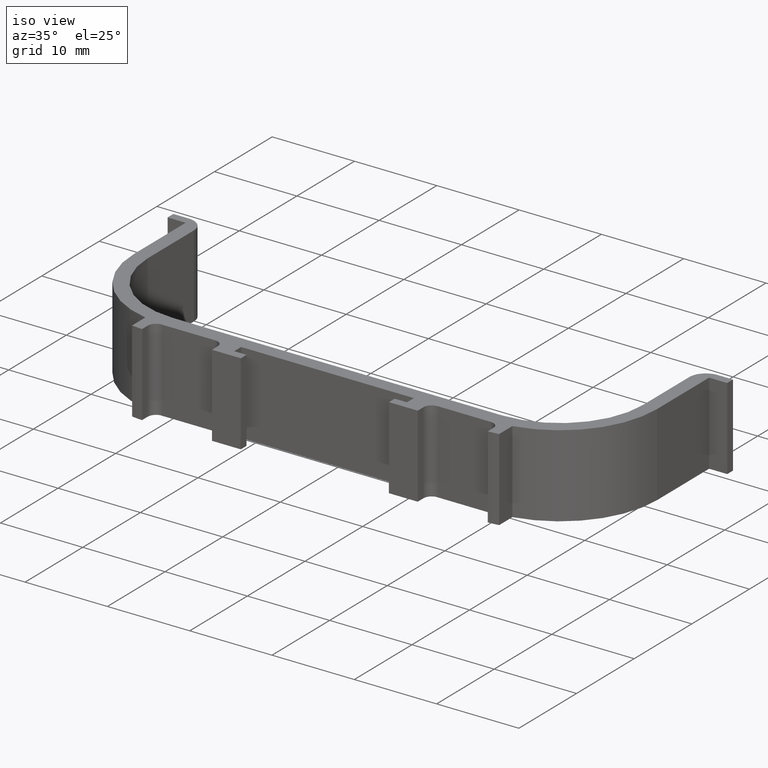
[diagram: clean part render]
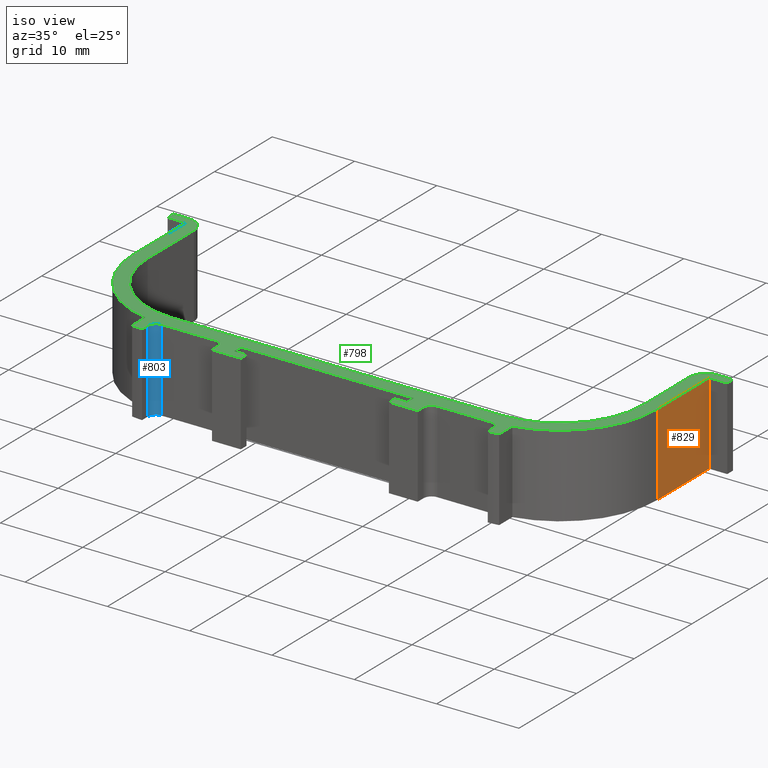
[diagram: same view with three faces highlighted in distinct colors, each labeled with its STEP entity id]
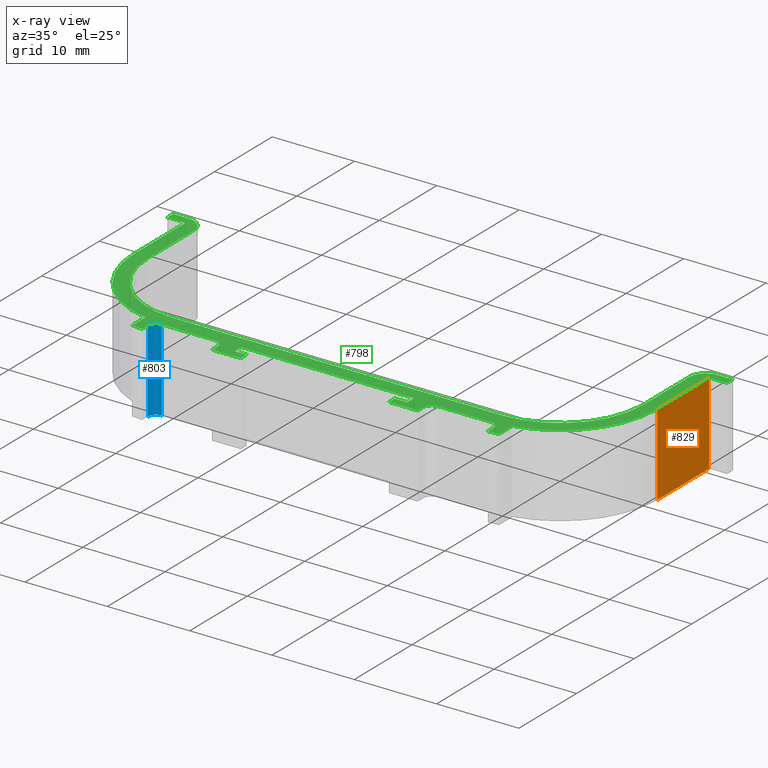
[diagram: x-ray of the same camera — body ghosted, the three highlighted faces saturated]
A machine part, iso view with three faces highlighted in distinct colors.
The next image is the same camera in x-ray (body ghosted, the three faces saturated) — at least one of them is partly hidden behind the body in this view.
Their STEP definitions:

[orange] entity #829 — the highlighted planar face has unit normal (1, 0, 0).
#37=PLANE('',#897);
#77=FACE_OUTER_BOUND('',#119,.T.);
#119=EDGE_LOOP('',(#745,#746,#747,#748));
#152=LINE('',#1207,#248);
#169=LINE('',#1253,#265);
#216=LINE('',#1361,#312);
#217=LINE('',#1363,#313);
#248=VECTOR('',#956,9.);
#265=VECTOR('',#993,9.);
#312=VECTOR('',#1108,10.);
#313=VECTOR('',#1111,10.);
#377=VERTEX_POINT('',#1204);
#378=VERTEX_POINT('',#1206);
#396=VERTEX_POINT('',#1250);
#397=VERTEX_POINT('',#1252);
#458=EDGE_CURVE('',#378,#377,#152,.T.);
#481=EDGE_CURVE('',#397,#396,#169,.T.);
#536=EDGE_CURVE('',#396,#378,#216,.T.);
#537=EDGE_CURVE('',#397,#377,#217,.T.);
#745=ORIENTED_EDGE('',*,*,#458,.T.);
#746=ORIENTED_EDGE('',*,*,#537,.F.);
#747=ORIENTED_EDGE('',*,*,#481,.T.);
#748=ORIENTED_EDGE('',*,*,#536,.T.);
#829=ADVANCED_FACE('',(#77),#37,.T.);
#897=AXIS2_PLACEMENT_3D('',#1362,#1109,#1110);
#956=DIRECTION('',(0.,-1.,0.));
#993=DIRECTION('',(-7.16272919113005E-16,1.,0.));
#1108=DIRECTION('',(0.,0.,1.));
#1109=DIRECTION('center_axis',(1.,0.,0.));
#1110=DIRECTION('ref_axis',(0.,0.,-1.));
#1111=DIRECTION('',(0.,0.,1.));
#1204=CARTESIAN_POINT('',(31.8,10.,5.));
#1206=CARTESIAN_POINT('',(31.8,19.,5.));
#1207=CARTESIAN_POINT('',(31.8,10.,5.));
#1250=CARTESIAN_POINT('',(31.8,19.,-5.));
#1252=CARTESIAN_POINT('',(31.8,10.,-5.));
#1253=CARTESIAN_POINT('',(31.8,12.8,-5.));
#1361=CARTESIAN_POINT('',(31.8,19.,0.));
#1362=CARTESIAN_POINT('Origin',(31.8,12.8,0.));
#1363=CARTESIAN_POINT('',(31.8,10.,0.));

[blue] entity #803 — the highlighted cylindrical surface (edge-blend (fillet) strip) has radius 1 mm, axis along (0, 0, -1).
#51=FACE_OUTER_BOUND('',#93,.T.);
#93=EDGE_LOOP('',(#641,#642,#643,#644));
#190=LINE('',#1310,#286);
#191=LINE('',#1311,#287);
#286=VECTOR('',#1032,10.);
#287=VECTOR('',#1033,10.);
#325=CIRCLE('',#847,1.);
#342=CIRCLE('',#868,1.);
#356=VERTEX_POINT('',#1162);
#357=VERTEX_POINT('',#1164);
#417=VERTEX_POINT('',#1292);
#418=VERTEX_POINT('',#1294);
#437=EDGE_CURVE('',#356,#357,#325,.T.);
#502=EDGE_CURVE('',#417,#418,#342,.T.);
#510=EDGE_CURVE('',#357,#417,#190,.T.);
#511=EDGE_CURVE('',#418,#356,#191,.T.);
#641=ORIENTED_EDGE('',*,*,#502,.F.);
#642=ORIENTED_EDGE('',*,*,#510,.F.);
#643=ORIENTED_EDGE('',*,*,#437,.F.);
#644=ORIENTED_EDGE('',*,*,#511,.F.);
#787=CYLINDRICAL_SURFACE('',#871,1.);
#803=ADVANCED_FACE('',(#51),#787,.F.);
#847=AXIS2_PLACEMENT_3D('',#1165,#929,#930);
#868=AXIS2_PLACEMENT_3D('',#1295,#1019,#1020);
#871=AXIS2_PLACEMENT_3D('',#1309,#1030,#1031);
#929=DIRECTION('center_axis',(0.,0.,-1.));
#930=DIRECTION('ref_axis',(-0.707106781186549,0.707106781186546,0.));
#1019=DIRECTION('center_axis',(0.,0.,1.));
#1020=DIRECTION('ref_axis',(-0.707106781186549,0.707106781186546,0.));
#1030=DIRECTION('center_axis',(0.,0.,-1.));
#1031=DIRECTION('ref_axis',(-0.707106781186549,0.707106781186546,0.));
#1032=DIRECTION('',(0.,0.,-1.));
#1033=DIRECTION('',(0.,0.,1.));
#1162=CARTESIAN_POINT('',(-21.,-3.,5.));
#1164=CARTESIAN_POINT('',(-20.,-2.,5.));
#1165=CARTESIAN_POINT('Origin',(-20.,-3.,5.));
#1292=CARTESIAN_POINT('',(-20.,-2.,-5.));
#1294=CARTESIAN_POINT('',(-21.,-3.,-5.));
#1295=CARTESIAN_POINT('Origin',(-20.,-3.,-5.));
#1309=CARTESIAN_POINT('Origin',(-20.,-3.,0.));
#1310=CARTESIAN_POINT('',(-20.,-2.,0.));
#1311=CARTESIAN_POINT('',(-21.,-3.,0.));

[green] entity #798 — the highlighted planar face has unit normal (0, 0, 1).
#15=PLANE('',#844);
#46=FACE_OUTER_BOUND('',#88,.T.);
#88=EDGE_LOOP('',(#549,#550,#551,#552,#553,#554,#555,#556,#557,#558,#559,
#560,#561,#562,#563,#564,#565,#566,#567,#568,#569,#570,#571,#572,#573,#574,
#575,#576,#577,#578,#579,#580,#581,#582,#583,#584,#585,#586,#587,#588));
#131=LINE('',#1149,#227);
#132=LINE('',#1151,#228);
#133=LINE('',#1153,#229);
#134=LINE('',#1155,#230);
#135=LINE('',#1159,#231);
#136=LINE('',#1163,#232);
#137=LINE('',#1167,#233);
#138=LINE('',#1171,#234);
#139=LINE('',#1173,#235);
#140=LINE('',#1175,#236);
#141=LINE('',#1177,#237);
#142=LINE('',#1179,#238);
#143=LINE('',#1181,#239);
#144=LINE('',#1183,#240);
#145=LINE('',#1185,#241);
#146=LINE('',#1187,#242);
#147=LINE('',#1189,#243);
#148=LINE('',#1191,#244);
#149=LINE('',#1195,#245);
#150=LINE('',#1199,#246);
#151=LINE('',#1203,#247);
#152=LINE('',#1207,#248);
#153=LINE('',#1209,#249);
#154=LINE('',#1211,#250);
#155=LINE('',#1213,#251);
#156=LINE('',#1217,#252);
#157=LINE('',#1221,#253);
#158=LINE('',#1224,#254);
#227=VECTOR('',#919,1.9);
#228=VECTOR('',#920,0.999999999999999);
#229=VECTOR('',#921,2.2);
#230=VECTOR('',#922,9.);
#231=VECTOR('',#925,2.29055492974429);
#232=VECTOR('',#928,0.9895788082818);
#233=VECTOR('',#931,6.5);
#234=VECTOR('',#934,1.);
#235=VECTOR('',#935,3.5);
#236=VECTOR('',#936,1.);
#237=VECTOR('',#937,1.5);
#238=VECTOR('',#938,1.2);
#239=VECTOR('',#939,21.);
#240=VECTOR('',#940,1.2);
#241=VECTOR('',#941,1.5);
#242=VECTOR('',#942,1.);
#243=VECTOR('',#943,3.5);
#244=VECTOR('',#944,1.);
#245=VECTOR('',#947,6.5);
#246=VECTOR('',#950,0.9895788082818);
#247=VECTOR('',#953,2.29055492974429);
#248=VECTOR('',#956,9.);
#249=VECTOR('',#957,2.2);
#250=VECTOR('',#958,0.999999999999999);
#251=VECTOR('',#959,1.9);
#252=VECTOR('',#962,7.99999999999999);
#253=VECTOR('',#965,40.);
#254=VECTOR('',#968,7.99999999999999);
#322=CIRCLE('',#843,2.);
#323=CIRCLE('',#845,11.8);
#324=CIRCLE('',#846,11.9999999999985);
#325=CIRCLE('',#847,1.);
#326=CIRCLE('',#848,1.);
#327=CIRCLE('',#849,1.);
#328=CIRCLE('',#850,1.);
#329=CIRCLE('',#851,11.9999999999985);
#330=CIRCLE('',#852,11.8);
#331=CIRCLE('',#853,2.);
#332=CIRCLE('',#854,10.1);
#333=CIRCLE('',#855,10.1);
#347=VERTEX_POINT('',#1142);
#348=VERTEX_POINT('',#1144);
#349=VERTEX_POINT('',#1148);
#350=VERTEX_POINT('',#1150);
#351=VERTEX_POINT('',#1152);
#352=VERTEX_POINT('',#1154);
#353=VERTEX_POINT('',#1156);
#354=VERTEX_POINT('',#1158);
#355=VERTEX_POINT('',#1160);
#356=VERTEX_POINT('',#1162);
#357=VERTEX_POINT('',#1164);
#358=VERTEX_POINT('',#1166);
#359=VERTEX_POINT('',#1168);
#360=VERTEX_POINT('',#1170);
#361=VERTEX_POINT('',#1172);
#362=VERTEX_POINT('',#1174);
#363=VERTEX_POINT('',#1176);
#364=VERTEX_POINT('',#1178);
#365=VERTEX_POINT('',#1180);
#366=VERTEX_POINT('',#1182);
#367=VERTEX_POINT('',#1184);
#368=VERTEX_POINT('',#1186);
#369=VERTEX_POINT('',#1188);
#370=VERTEX_POINT('',#1190);
#371=VERTEX_POINT('',#1192);
#372=VERTEX_POINT('',#1194);
#373=VERTEX_POINT('',#1196);
#374=VERTEX_POINT('',#1198);
#375=VERTEX_POINT('',#1200);
#376=VERTEX_POINT('',#1202);
#377=VERTEX_POINT('',#1204);
#378=VERTEX_POINT('',#1206);
#379=VERTEX_POINT('',#1208);
#380=VERTEX_POINT('',#1210);
#381=VERTEX_POINT('',#1212);
#382=VERTEX_POINT('',#1214);
#383=VERTEX_POINT('',#1216);
#384=VERTEX_POINT('',#1218);
#385=VERTEX_POINT('',#1220);
#386=VERTEX_POINT('',#1222);
#427=EDGE_CURVE('',#347,#348,#322,.T.);
#429=EDGE_CURVE('',#347,#349,#131,.T.);
#430=EDGE_CURVE('',#349,#350,#132,.T.);
#431=EDGE_CURVE('',#350,#351,#133,.T.);
#432=EDGE_CURVE('',#351,#352,#134,.T.);
#433=EDGE_CURVE('',#352,#353,#323,.T.);
#434=EDGE_CURVE('',#353,#354,#135,.T.);
#435=EDGE_CURVE('',#354,#355,#324,.T.);
#436=EDGE_CURVE('',#355,#356,#136,.T.);
#437=EDGE_CURVE('',#356,#357,#325,.T.);
#438=EDGE_CURVE('',#357,#358,#137,.T.);
#439=EDGE_CURVE('',#358,#359,#326,.T.);
#440=EDGE_CURVE('',#359,#360,#138,.T.);
#441=EDGE_CURVE('',#360,#361,#139,.T.);
#442=EDGE_CURVE('',#361,#362,#140,.T.);
#443=EDGE_CURVE('',#362,#363,#141,.T.);
#444=EDGE_CURVE('',#363,#364,#142,.T.);
#445=EDGE_CURVE('',#364,#365,#143,.T.);
#446=EDGE_CURVE('',#366,#365,#144,.T.);
#447=EDGE_CURVE('',#367,#366,#145,.T.);
#448=EDGE_CURVE('',#368,#367,#146,.T.);
#449=EDGE_CURVE('',#369,#368,#147,.T.);
#450=EDGE_CURVE('',#370,#369,#148,.T.);
#451=EDGE_CURVE('',#371,#370,#327,.T.);
#452=EDGE_CURVE('',#372,#371,#149,.T.);
#453=EDGE_CURVE('',#373,#372,#328,.T.);
#454=EDGE_CURVE('',#374,#373,#150,.T.);
#455=EDGE_CURVE('',#375,#374,#329,.T.);
#456=EDGE_CURVE('',#376,#375,#151,.T.);
#457=EDGE_CURVE('',#377,#376,#330,.T.);
#458=EDGE_CURVE('',#378,#377,#152,.T.);
#459=EDGE_CURVE('',#379,#378,#153,.T.);
#460=EDGE_CURVE('',#380,#379,#154,.T.);
#461=EDGE_CURVE('',#381,#380,#155,.T.);
#462=EDGE_CURVE('',#382,#381,#331,.T.);
#463=EDGE_CURVE('',#382,#383,#156,.T.);
#464=EDGE_CURVE('',#383,#384,#332,.T.);
#465=EDGE_CURVE('',#384,#385,#157,.T.);
#466=EDGE_CURVE('',#385,#386,#333,.T.);
#467=EDGE_CURVE('',#386,#348,#158,.T.);
#549=ORIENTED_EDGE('',*,*,#427,.F.);
#550=ORIENTED_EDGE('',*,*,#429,.T.);
#551=ORIENTED_EDGE('',*,*,#430,.T.);
#552=ORIENTED_EDGE('',*,*,#431,.T.);
#553=ORIENTED_EDGE('',*,*,#432,.T.);
#554=ORIENTED_EDGE('',*,*,#433,.T.);
#555=ORIENTED_EDGE('',*,*,#434,.T.);
#556=ORIENTED_EDGE('',*,*,#435,.T.);
#557=ORIENTED_EDGE('',*,*,#436,.T.);
#558=ORIENTED_EDGE('',*,*,#437,.T.);
#559=ORIENTED_EDGE('',*,*,#438,.T.);
#560=ORIENTED_EDGE('',*,*,#439,.T.);
#561=ORIENTED_EDGE('',*,*,#440,.T.);
#562=ORIENTED_EDGE('',*,*,#441,.T.);
#563=ORIENTED_EDGE('',*,*,#442,.T.);
#564=ORIENTED_EDGE('',*,*,#443,.T.);
#565=ORIENTED_EDGE('',*,*,#444,.T.);
#566=ORIENTED_EDGE('',*,*,#445,.T.);
#567=ORIENTED_EDGE('',*,*,#446,.F.);
#568=ORIENTED_EDGE('',*,*,#447,.F.);
#569=ORIENTED_EDGE('',*,*,#448,.F.);
#570=ORIENTED_EDGE('',*,*,#449,.F.);
#571=ORIENTED_EDGE('',*,*,#450,.F.);
#572=ORIENTED_EDGE('',*,*,#451,.F.);
#573=ORIENTED_EDGE('',*,*,#452,.F.);
#574=ORIENTED_EDGE('',*,*,#453,.F.);
#575=ORIENTED_EDGE('',*,*,#454,.F.);
#576=ORIENTED_EDGE('',*,*,#455,.F.);
#577=ORIENTED_EDGE('',*,*,#456,.F.);
#578=ORIENTED_EDGE('',*,*,#457,.F.);
#579=ORIENTED_EDGE('',*,*,#458,.F.);
#580=ORIENTED_EDGE('',*,*,#459,.F.);
#581=ORIENTED_EDGE('',*,*,#460,.F.);
#582=ORIENTED_EDGE('',*,*,#461,.F.);
#583=ORIENTED_EDGE('',*,*,#462,.F.);
#584=ORIENTED_EDGE('',*,*,#463,.T.);
#585=ORIENTED_EDGE('',*,*,#464,.T.);
#586=ORIENTED_EDGE('',*,*,#465,.T.);
#587=ORIENTED_EDGE('',*,*,#466,.T.);
#588=ORIENTED_EDGE('',*,*,#467,.T.);
#798=ADVANCED_FACE('',(#46),#15,.T.);
#843=AXIS2_PLACEMENT_3D('',#1145,#914,#915);
#844=AXIS2_PLACEMENT_3D('',#1147,#917,#918);
#845=AXIS2_PLACEMENT_3D('',#1157,#923,#924);
#846=AXIS2_PLACEMENT_3D('',#1161,#926,#927);
#847=AXIS2_PLACEMENT_3D('',#1165,#929,#930);
#848=AXIS2_PLACEMENT_3D('',#1169,#932,#933);
#849=AXIS2_PLACEMENT_3D('',#1193,#945,#946);
#850=AXIS2_PLACEMENT_3D('',#1197,#948,#949);
#851=AXIS2_PLACEMENT_3D('',#1201,#951,#952);
#852=AXIS2_PLACEMENT_3D('',#1205,#954,#955);
#853=AXIS2_PLACEMENT_3D('',#1215,#960,#961);
#854=AXIS2_PLACEMENT_3D('',#1219,#963,#964);
#855=AXIS2_PLACEMENT_3D('',#1223,#966,#967);
#914=DIRECTION('center_axis',(0.,0.,-1.));
#915=DIRECTION('ref_axis',(0.707106781186548,0.707106781186547,0.));
#917=DIRECTION('center_axis',(0.,0.,1.));
#918=DIRECTION('ref_axis',(1.,0.,0.));
#919=DIRECTION('',(-1.,0.,0.));
#920=DIRECTION('',(0.,-1.,0.));
#921=DIRECTION('',(1.,0.,0.));
#922=DIRECTION('',(0.,-1.,0.));
#923=DIRECTION('center_axis',(0.,0.,1.));
#924=DIRECTION('ref_axis',(-0.194915254237288,-0.980820087307358,0.));
#925=DIRECTION('',(0.,-1.,0.));
#926=DIRECTION('center_axis',(0.,0.,1.));
#927=DIRECTION('ref_axis',(-0.0416666666666607,-0.999131567356817,0.));
#928=DIRECTION('',(2.23207649780698E-15,1.,0.));
#929=DIRECTION('center_axis',(0.,0.,-1.));
#930=DIRECTION('ref_axis',(-0.707106781186549,0.707106781186546,0.));
#931=DIRECTION('',(1.,-1.30614473485313E-16,0.));
#932=DIRECTION('center_axis',(0.,0.,-1.));
#933=DIRECTION('ref_axis',(0.707106781186548,0.707106781186547,0.));
#934=DIRECTION('',(0.,-1.,0.));
#935=DIRECTION('',(1.,3.1720657846433E-16,0.));
#936=DIRECTION('',(0.,1.,0.));
#937=DIRECTION('',(-1.,0.,0.));
#938=DIRECTION('',(1.85037170770859E-15,1.,0.));
#939=DIRECTION('',(1.,-4.22942104619107E-16,0.));
#940=DIRECTION('',(-1.85037170770859E-15,1.,0.));
#941=DIRECTION('',(1.,0.,0.));
#942=DIRECTION('',(0.,1.,0.));
#943=DIRECTION('',(-1.,3.1720657846433E-16,0.));
#944=DIRECTION('',(0.,-1.,0.));
#945=DIRECTION('center_axis',(0.,0.,1.));
#946=DIRECTION('ref_axis',(-0.707106781186548,0.707106781186547,0.));
#947=DIRECTION('',(-1.,-1.30614473485313E-16,0.));
#948=DIRECTION('center_axis',(0.,0.,1.));
#949=DIRECTION('ref_axis',(0.707106781186549,0.707106781186546,0.));
#950=DIRECTION('',(-2.23207649780698E-15,1.,0.));
#951=DIRECTION('center_axis',(0.,0.,-1.));
#952=DIRECTION('ref_axis',(0.0416666666666607,-0.999131567356817,0.));
#953=DIRECTION('',(0.,-1.,0.));
#954=DIRECTION('center_axis',(0.,0.,-1.));
#955=DIRECTION('ref_axis',(0.194915254237288,-0.980820087307358,0.));
#956=DIRECTION('',(0.,-1.,0.));
#957=DIRECTION('',(-1.,0.,0.));
#958=DIRECTION('',(0.,-1.,0.));
#959=DIRECTION('',(1.,0.,0.));
#960=DIRECTION('center_axis',(0.,0.,-1.));
#961=DIRECTION('ref_axis',(-0.707106781186548,0.707106781186547,0.));
#962=DIRECTION('',(8.88178419700126E-16,-1.,0.));
#963=DIRECTION('center_axis',(0.,0.,-1.));
#964=DIRECTION('ref_axis',(0.,1.,0.));
#965=DIRECTION('',(-1.,-1.72604985859692E-16,0.));
#966=DIRECTION('center_axis',(0.,0.,-1.));
#967=DIRECTION('ref_axis',(0.,1.,0.));
#968=DIRECTION('',(8.88178419700126E-16,1.,0.));
#1142=CARTESIAN_POINT('',(-32.1,20.,5.));
#1144=CARTESIAN_POINT('',(-30.1,18.,5.));
#1145=CARTESIAN_POINT('Origin',(-32.1,18.,5.));
#1147=CARTESIAN_POINT('Origin',(20.3173587428705,3.92051462704837,5.));
#1148=CARTESIAN_POINT('',(-34.,20.,5.));
#1149=CARTESIAN_POINT('',(-34.,20.,5.));
#1150=CARTESIAN_POINT('',(-34.,19.,5.));
#1151=CARTESIAN_POINT('',(-34.,19.,5.));
#1152=CARTESIAN_POINT('',(-31.8,19.,5.));
#1153=CARTESIAN_POINT('',(-31.8,19.,5.));
#1154=CARTESIAN_POINT('',(-31.8,10.,5.));
#1155=CARTESIAN_POINT('',(-31.8,10.,5.));
#1156=CARTESIAN_POINT('',(-22.3,-1.57367703022683,5.));
#1157=CARTESIAN_POINT('Origin',(-20.,10.,5.));
#1158=CARTESIAN_POINT('',(-22.3,-3.86423195997111,5.));
#1159=CARTESIAN_POINT('',(-22.3,-3.86423195997111,5.));
#1160=CARTESIAN_POINT('',(-21.,-3.9895788082818,5.));
#1161=CARTESIAN_POINT('Origin',(-20.5000000000001,7.9999999999985,5.));
#1162=CARTESIAN_POINT('',(-21.,-3.,5.));
#1163=CARTESIAN_POINT('',(-21.,-2.,5.));
#1164=CARTESIAN_POINT('',(-20.,-2.,5.));
#1165=CARTESIAN_POINT('Origin',(-20.,-3.,5.));
#1166=CARTESIAN_POINT('',(-13.5,-2.,5.));
#1167=CARTESIAN_POINT('',(-12.5,-2.,5.));
#1168=CARTESIAN_POINT('',(-12.5,-3.,5.));
#1169=CARTESIAN_POINT('Origin',(-13.5,-3.,5.));
#1170=CARTESIAN_POINT('',(-12.5,-4.,5.));
#1171=CARTESIAN_POINT('',(-12.5,-4.,5.));
#1172=CARTESIAN_POINT('',(-9.,-4.,5.));
#1173=CARTESIAN_POINT('',(-9.,-4.,5.));
#1174=CARTESIAN_POINT('',(-9.,-3.,5.));
#1175=CARTESIAN_POINT('',(-9.,-3.,5.));
#1176=CARTESIAN_POINT('',(-10.5,-3.,5.));
#1177=CARTESIAN_POINT('',(-10.5,-3.,5.));
#1178=CARTESIAN_POINT('',(-10.5,-1.8,5.));
#1179=CARTESIAN_POINT('',(-10.5,-1.8,5.));
#1180=CARTESIAN_POINT('',(10.5,-1.8,5.));
#1181=CARTESIAN_POINT('',(0.,-1.8,5.));
#1182=CARTESIAN_POINT('',(10.5,-3.,5.));
#1183=CARTESIAN_POINT('',(10.5,-1.8,5.));
#1184=CARTESIAN_POINT('',(9.,-3.,5.));
#1185=CARTESIAN_POINT('',(10.5,-3.,5.));
#1186=CARTESIAN_POINT('',(9.,-4.,5.));
#1187=CARTESIAN_POINT('',(9.,-3.,5.));
#1188=CARTESIAN_POINT('',(12.5,-4.,5.));
#1189=CARTESIAN_POINT('',(9.,-4.,5.));
#1190=CARTESIAN_POINT('',(12.5,-3.,5.));
#1191=CARTESIAN_POINT('',(12.5,-4.,5.));
#1192=CARTESIAN_POINT('',(13.5,-2.,5.));
#1193=CARTESIAN_POINT('Origin',(13.5,-3.,5.));
#1194=CARTESIAN_POINT('',(20.,-2.,5.));
#1195=CARTESIAN_POINT('',(12.5,-2.,5.));
#1196=CARTESIAN_POINT('',(21.,-3.,5.));
#1197=CARTESIAN_POINT('Origin',(20.,-3.,5.));
#1198=CARTESIAN_POINT('',(21.,-3.9895788082818,5.));
#1199=CARTESIAN_POINT('',(21.,-2.,5.));
#1200=CARTESIAN_POINT('',(22.3,-3.86423195997111,5.));
#1201=CARTESIAN_POINT('Origin',(20.5000000000001,7.9999999999985,5.));
#1202=CARTESIAN_POINT('',(22.3,-1.57367703022683,5.));
#1203=CARTESIAN_POINT('',(22.3,-3.86423195997111,5.));
#1204=CARTESIAN_POINT('',(31.8,10.,5.));
#1205=CARTESIAN_POINT('Origin',(20.,10.,5.));
#1206=CARTESIAN_POINT('',(31.8,19.,5.));
#1207=CARTESIAN_POINT('',(31.8,10.,5.));
#1208=CARTESIAN_POINT('',(34.,19.,5.));
#1209=CARTESIAN_POINT('',(31.8,19.,5.));
#1210=CARTESIAN_POINT('',(34.,20.,5.));
#1211=CARTESIAN_POINT('',(34.,19.,5.));
#1212=CARTESIAN_POINT('',(32.1,20.,5.));
#1213=CARTESIAN_POINT('',(34.,20.,5.));
#1214=CARTESIAN_POINT('',(30.1,18.,5.));
#1215=CARTESIAN_POINT('Origin',(32.1,18.,5.));
#1216=CARTESIAN_POINT('',(30.1,10.,5.));
#1217=CARTESIAN_POINT('',(30.1,6.9602573135242,5.));
#1218=CARTESIAN_POINT('',(20.,-0.0999999999999956,5.));
#1219=CARTESIAN_POINT('Origin',(20.,10.,5.));
#1220=CARTESIAN_POINT('',(-20.,-0.0999999999999956,5.));
#1221=CARTESIAN_POINT('',(10.1586793714353,-0.0999999999999973,5.));
#1222=CARTESIAN_POINT('',(-30.1,10.,5.));
#1223=CARTESIAN_POINT('Origin',(-20.,10.,5.));
#1224=CARTESIAN_POINT('',(-30.1,6.96025731352422,5.));